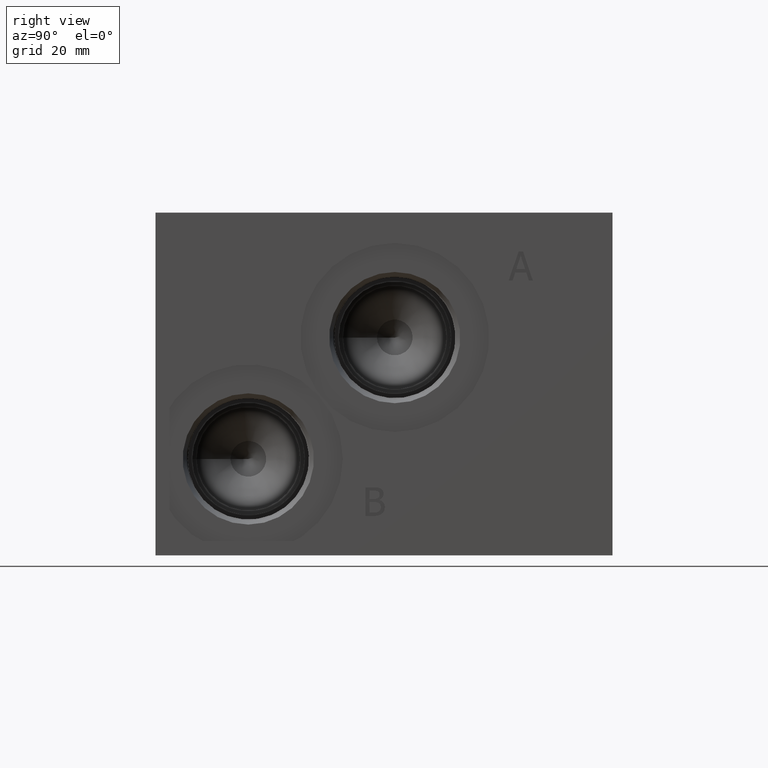
[diagram: clean part render]
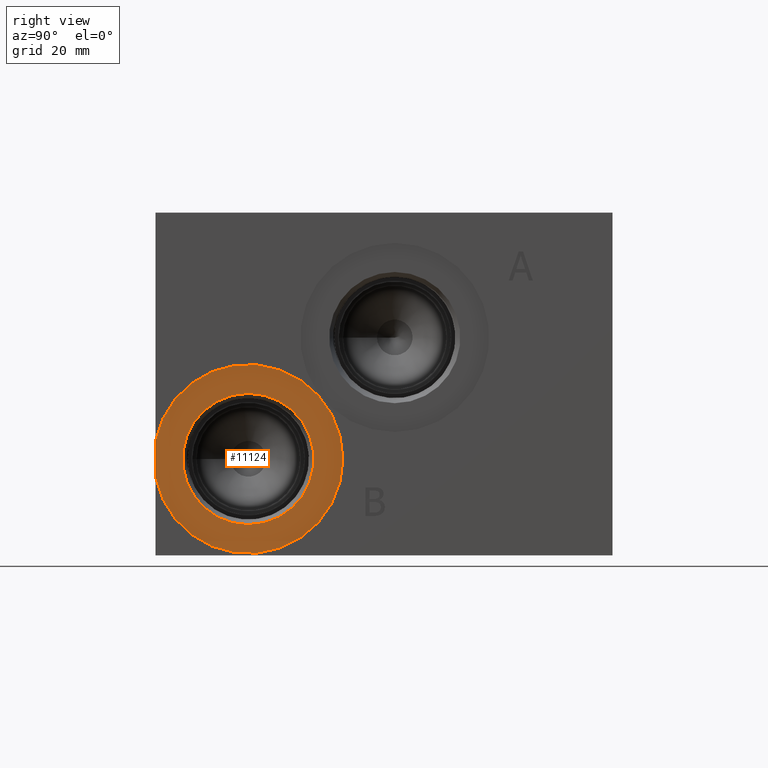
[diagram: same view with one face highlighted and labeled with its STEP entity id]
A machine part, right view. The second image highlights one B-rep face of the part: STEP entity #11124.
In plain terms, the highlighted planar face has unit normal (-1, 0, 0).
Its self-contained STEP definition (entity closure, byte-faithful):
#190=CIRCLE('',#11642,21.0185);
#191=CIRCLE('',#11643,14.5923);
#192=CIRCLE('',#11644,14.5923);
#357=FACE_BOUND('',#1967,.T.);
#1343=FACE_OUTER_BOUND('',#1966,.T.);
#1966=EDGE_LOOP('',(#9479,#9480));
#1967=EDGE_LOOP('',(#9481,#9482));
#2437=LINE('',#16805,#3478);
#3478=VECTOR('',#12401,10.);
#4547=VERTEX_POINT('',#16802);
#4548=VERTEX_POINT('',#16804);
#5078=VERTEX_POINT('',#18948);
#5079=VERTEX_POINT('',#18949);
#5803=EDGE_CURVE('',#4547,#4548,#2437,.T.);
#6585=EDGE_CURVE('',#4548,#4547,#190,.T.);
#6586=EDGE_CURVE('',#5078,#5079,#191,.T.);
#6587=EDGE_CURVE('',#5079,#5078,#192,.T.);
#9479=ORIENTED_EDGE('',*,*,#5803,.F.);
#9480=ORIENTED_EDGE('',*,*,#6585,.F.);
#9481=ORIENTED_EDGE('',*,*,#6586,.T.);
#9482=ORIENTED_EDGE('',*,*,#6587,.T.);
#10167=PLANE('',#11641);
#11124=ADVANCED_FACE('',(#1343,#357),#10167,.F.);
#11641=AXIS2_PLACEMENT_3D('',#18946,#13676,#13677);
#11642=AXIS2_PLACEMENT_3D('',#18947,#13678,#13679);
#11643=AXIS2_PLACEMENT_3D('',#18950,#13680,#13681);
#11644=AXIS2_PLACEMENT_3D('',#18951,#13682,#13683);
#12401=DIRECTION('',(0.,0.,1.));
#13676=DIRECTION('center_axis',(-1.,0.,0.));
#13677=DIRECTION('ref_axis',(0.,0.,1.));
#13678=DIRECTION('center_axis',(-1.,0.,0.));
#13679=DIRECTION('ref_axis',(0.,0.,1.));
#13680=DIRECTION('center_axis',(-1.,0.,0.));
#13681=DIRECTION('ref_axis',(0.,0.,1.));
#13682=DIRECTION('center_axis',(-1.,0.,0.));
#13683=DIRECTION('ref_axis',(0.,0.,1.));
#16802=CARTESIAN_POINT('',(100.8126,0.,17.3821800808704));
#16804=CARTESIAN_POINT('',(100.8126,0.,25.4803199191296));
#16805=CARTESIAN_POINT('',(100.8126,0.,3.419475));
#18946=CARTESIAN_POINT('Origin',(100.8126,20.6248,6.83895));
#18947=CARTESIAN_POINT('Origin',(100.8126,20.6248,21.43125));
#18948=CARTESIAN_POINT('',(100.8126,20.6248,6.83895));
#18949=CARTESIAN_POINT('',(100.8126,20.6248,36.02355));
#18950=CARTESIAN_POINT('Origin',(100.8126,20.6248,21.43125));
#18951=CARTESIAN_POINT('Origin',(100.8126,20.6248,21.43125));